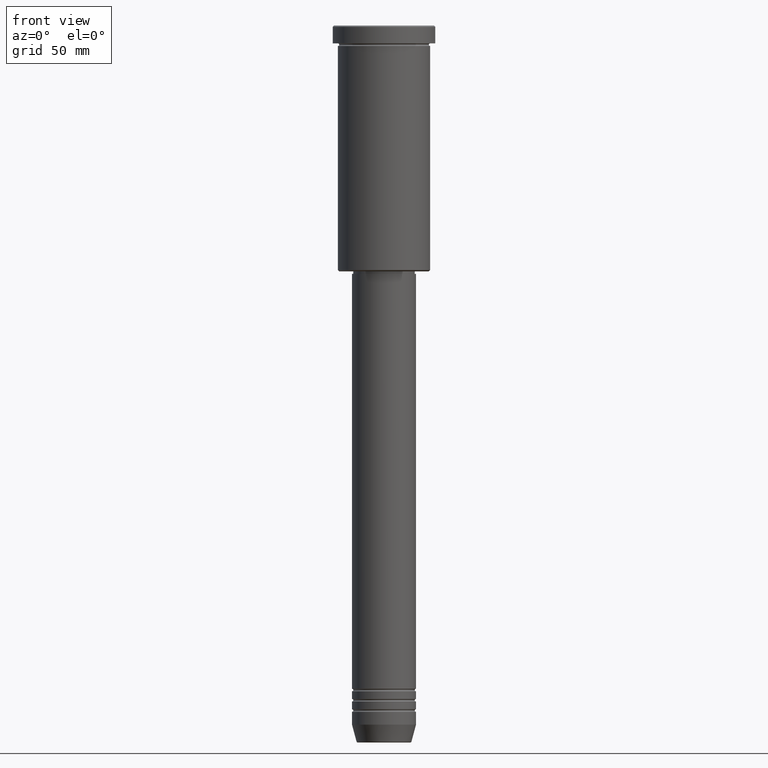
[diagram: clean part render]
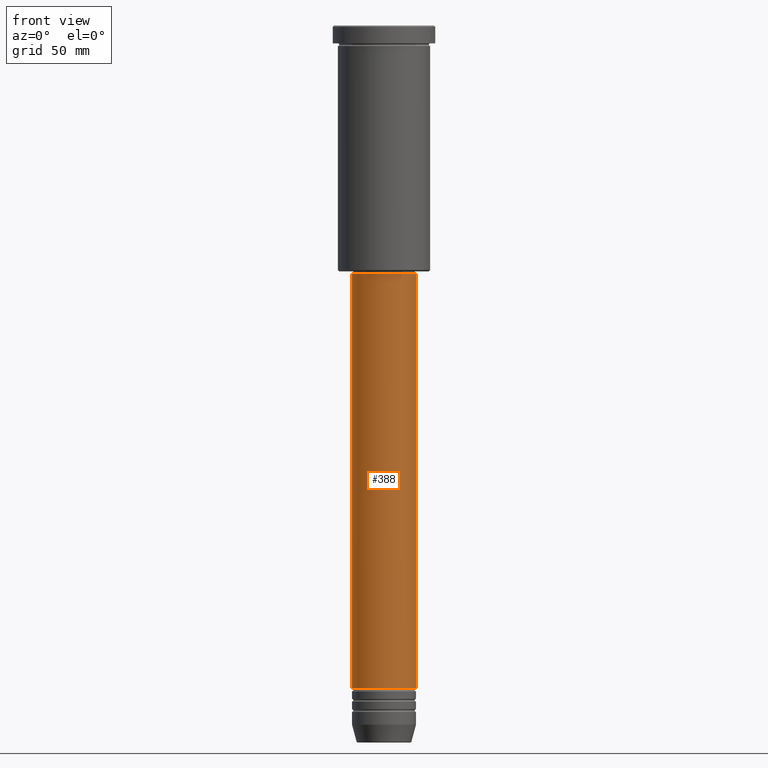
[diagram: same view with one face highlighted and labeled with its STEP entity id]
A machine part, front view. The second image highlights one B-rep face of the part: STEP entity #388.
In plain terms, the highlighted cylindrical surface (edge-blend (fillet) strip) has radius 12.5 mm, axis along (-0, -0, 1).
Its self-contained STEP definition (entity closure, byte-faithful):
#96 = AXIS2_PLACEMENT_3D ( 'NONE', #308, #667, #562 ) ;
#103 = ORIENTED_EDGE ( 'NONE', *, *, #664, .T. ) ;
#108 = CIRCLE ( 'NONE', #792, 12.50000000000000000 ) ;
#115 = DIRECTION ( 'NONE',  ( 1.000000000000000000, 0.000000000000000000, 0.000000000000000000 ) ) ;
#124 = CARTESIAN_POINT ( 'NONE',  ( 0.000000000000000000, 0.000000000000000000, 0.000000000000000000 ) ) ;
#127 = DIRECTION ( 'NONE',  ( -0.000000000000000000, -0.000000000000000000, 1.000000000000000000 ) ) ;
#150 = VERTEX_POINT ( 'NONE', #561 ) ;
#199 = EDGE_CURVE ( 'NONE', #295, #1073, #108, .T. ) ;
#200 = FACE_OUTER_BOUND ( 'NONE', #999, .T. ) ;
#212 = CYLINDRICAL_SURFACE ( 'NONE', #1139, 12.50000000000000000 ) ;
#295 = VERTEX_POINT ( 'NONE', #1065 ) ;
#308 = CARTESIAN_POINT ( 'NONE',  ( 0.000000000000000000, 0.000000000000000000, -259.0000000000000000 ) ) ;
#351 = CARTESIAN_POINT ( 'NONE',  ( 12.50000000000000000, 0.000000000000000000, 0.000000000000000000 ) ) ;
#363 = DIRECTION ( 'NONE',  ( -0.000000000000000000, -0.000000000000000000, 1.000000000000000000 ) ) ;
#381 = DIRECTION ( 'NONE',  ( 1.000000000000000000, 0.000000000000000000, 0.000000000000000000 ) ) ;
#388 = ADVANCED_FACE ( 'NONE', ( #200 ), #212, .T. ) ;
#419 = CIRCLE ( 'NONE', #96, 12.50000000000000000 ) ;
#443 = ORIENTED_EDGE ( 'NONE', *, *, #786, .T. ) ;
#561 = CARTESIAN_POINT ( 'NONE',  ( -12.50000000000000000, 1.530808498934191521E-15, -259.0000000000000000 ) ) ;
#562 = DIRECTION ( 'NONE',  ( 1.000000000000000000, 0.000000000000000000, 0.000000000000000000 ) ) ;
#572 = VECTOR ( 'NONE', #710, 1000.000000000000000 ) ;
#575 = CARTESIAN_POINT ( 'NONE',  ( 12.50000000000000000, 0.000000000000000000, -259.0000000000000000 ) ) ;
#664 = EDGE_CURVE ( 'NONE', #150, #896, #419, .T. ) ;
#667 = DIRECTION ( 'NONE',  ( -0.000000000000000000, -0.000000000000000000, 1.000000000000000000 ) ) ;
#668 = ORIENTED_EDGE ( 'NONE', *, *, #199, .F. ) ;
#673 = EDGE_CURVE ( 'NONE', #150, #295, #930, .T. ) ;
#710 = DIRECTION ( 'NONE',  ( -0.000000000000000000, -0.000000000000000000, 1.000000000000000000 ) ) ;
#763 = CARTESIAN_POINT ( 'NONE',  ( 12.50000000000000000, 0.000000000000000000, -97.00000000000002842 ) ) ;
#786 = EDGE_CURVE ( 'NONE', #896, #1073, #818, .T. ) ;
#792 = AXIS2_PLACEMENT_3D ( 'NONE', #1040, #926, #115 ) ;
#818 = LINE ( 'NONE', #351, #572 ) ;
#896 = VERTEX_POINT ( 'NONE', #575 ) ;
#926 = DIRECTION ( 'NONE',  ( -0.000000000000000000, -0.000000000000000000, 1.000000000000000000 ) ) ;
#930 = LINE ( 'NONE', #1020, #1094 ) ;
#999 = EDGE_LOOP ( 'NONE', ( #1130, #103, #443, #668 ) ) ;
#1020 = CARTESIAN_POINT ( 'NONE',  ( -12.50000000000000000, 1.530808498934191521E-15, 0.000000000000000000 ) ) ;
#1040 = CARTESIAN_POINT ( 'NONE',  ( 0.000000000000000000, 0.000000000000000000, -97.00000000000002842 ) ) ;
#1065 = CARTESIAN_POINT ( 'NONE',  ( -12.50000000000000000, 1.530808498934191521E-15, -97.00000000000002842 ) ) ;
#1073 = VERTEX_POINT ( 'NONE', #763 ) ;
#1094 = VECTOR ( 'NONE', #127, 1000.000000000000000 ) ;
#1130 = ORIENTED_EDGE ( 'NONE', *, *, #673, .F. ) ;
#1139 = AXIS2_PLACEMENT_3D ( 'NONE', #124, #363, #381 ) ;